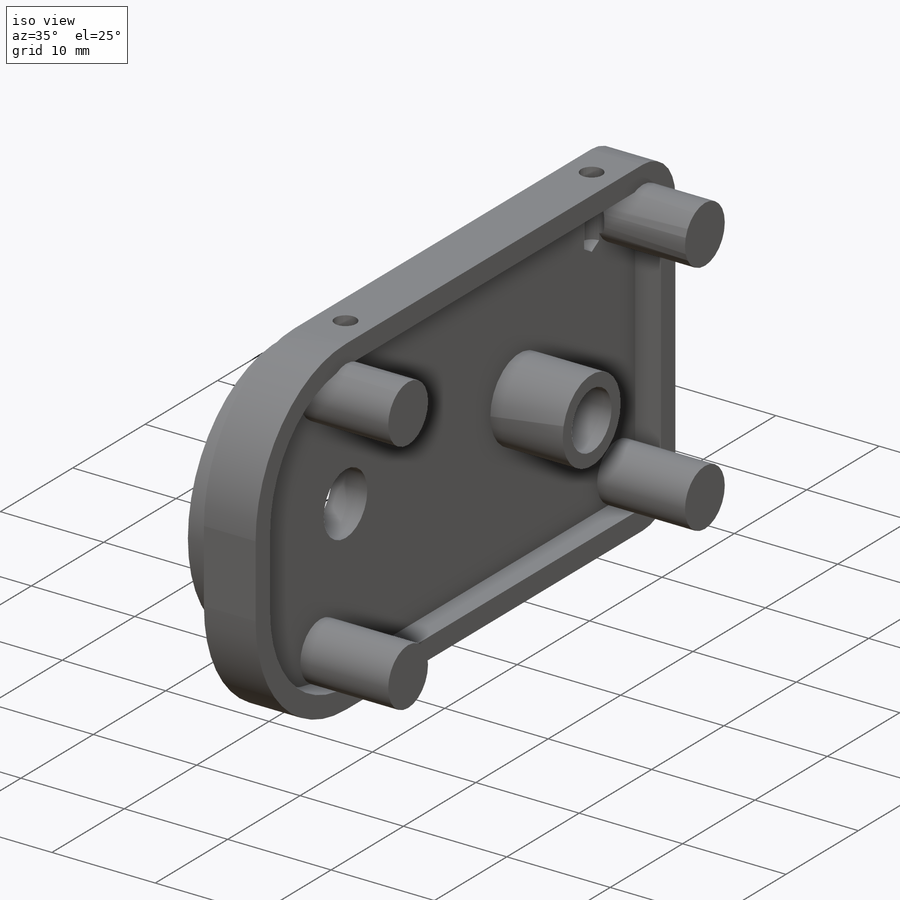
[diagram: iso view]
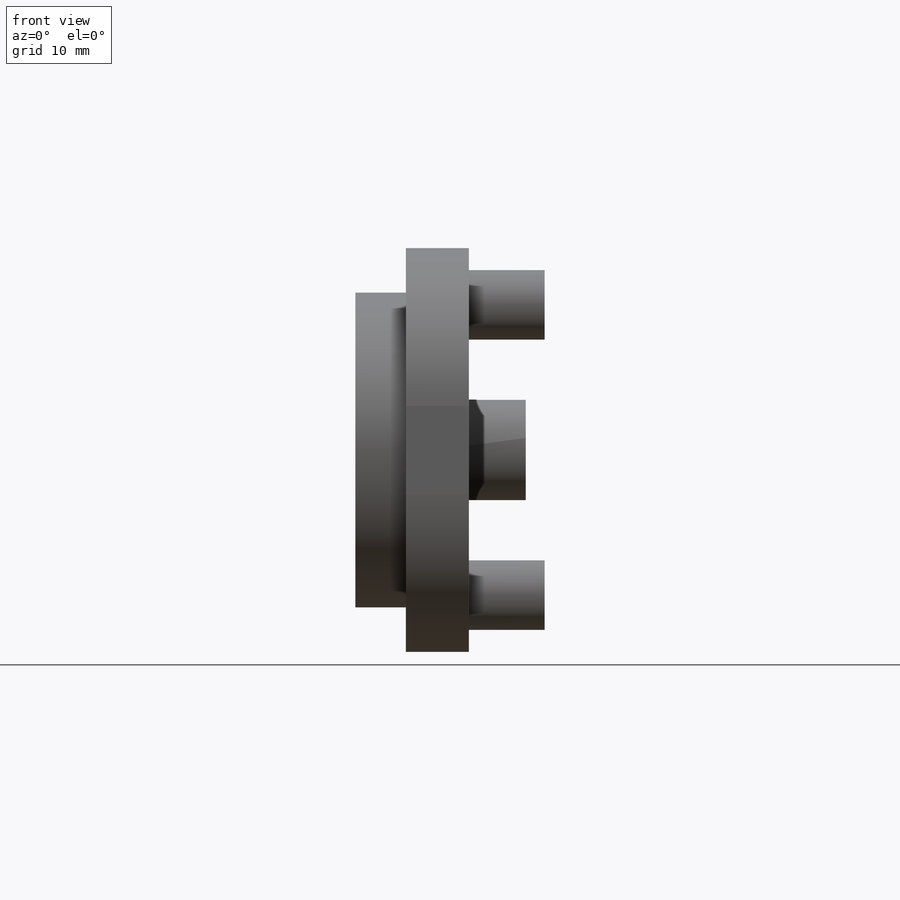
[diagram: front view]
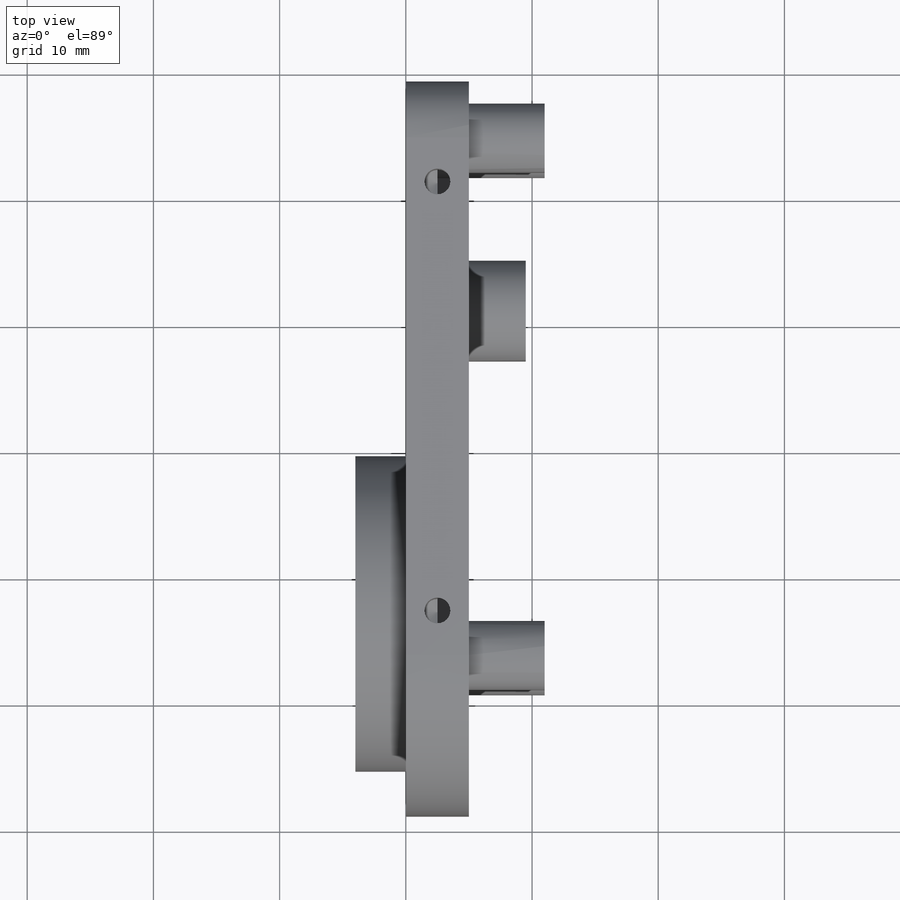
[diagram: top view]
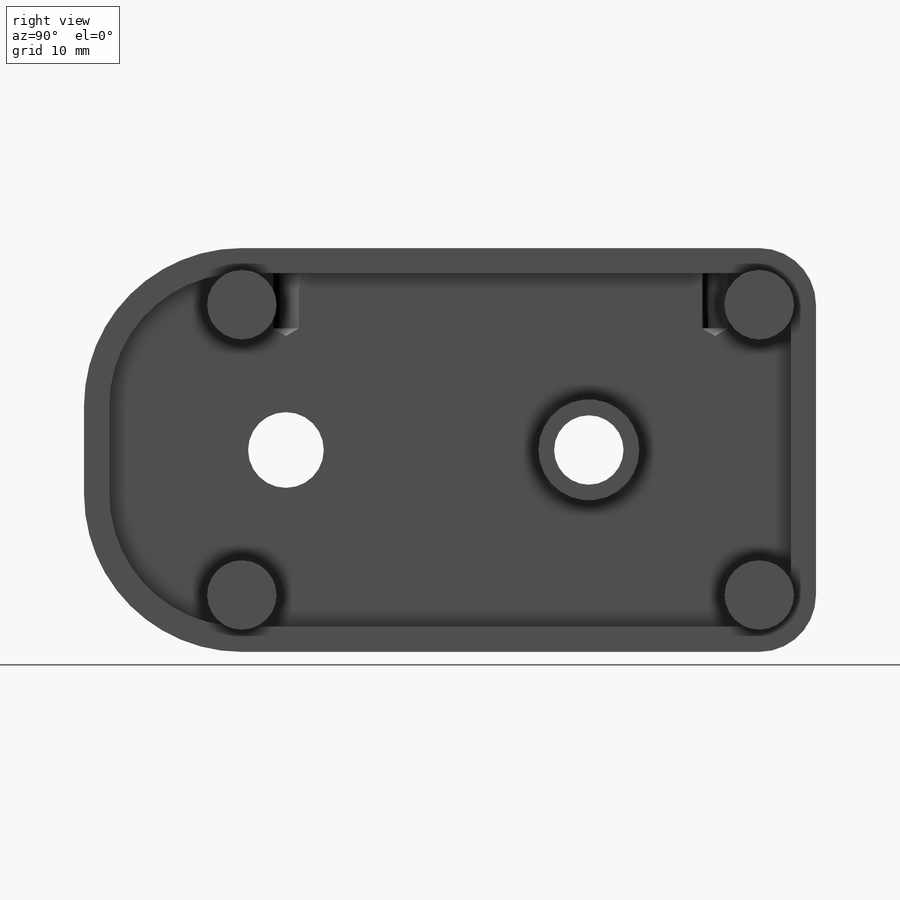
[diagram: right view]
SOLIDWORKS PART (.sldprt)
format: sldprt  version: not decoded by parser v0  size: 419,840 bytes
history: native  units: mm
features: sketch x9, extrude x4, cut_extrude x3, fillet x2, thread x2, material x1, hole x1 (+12 scaffold rows collapsed)
feature tree (34):
  scaffold x12  (default folders/planes/origin — collapsed)
  material  "Delrin 2700 NC010, Low Viscosity Acetal Copolymer (SS)"
  sketch  "Sketch1"  dims[c1.D5=14.5mm c1.D6=14.5mm c1.D3=~5.990504mm c1.D4=5.5mm c1.D1=32.0mm c1.D2=58.0mm c2.D3=8.5mm c2.D4=38.5mm c2.D6=18.0mm c3.D3=18.0mm]
  extrude  "Boss-Extrude1"  Depth=5mm
  sketch  "Sketch2"  dims[D1=8.0mm]
  extrude  "Boss-Extrude2"  Depth=4.5mm
  fillet  "Fillet1"  Radius=4.5mm
  fillet  "Fillet2"  Radius=12.5mm
  sketch  "Sketch4"  dims[D1=5.5mm D2=41.0mm]
  extrude  "Boss-Extrude3"  Depth=6mm
  sketch  "Sketch8"  dims[D1=25.0mm D2=24.0mm]
  extrude  "Boss-Extrude4"  Depth=4mm
  sketch  "Sketch9"  dims[D1=20.0mm]
  cut_extrude  "Cut-Extrude2"  Depth=3mm
  sketch  "Sketch10"  dims[D1=6.0mm]
  cut_extrude  "Cut-Extrude3"  [1 undecoded]
  sketch  "Sketch3"  dims[D1=2.0mm]
  cut_extrude  "Cut-Extrude1"  Depth=2.5mm
  hole  "M2.5x0.45 Tapped Hole1"  Diameter=2.05mm Depth=6.35mm
  sketch  "Sketch7"  dims[D1=34.0mm D2=17.0mm]
  sketch  "Sketch6"  dims[hole-wizard template sketch: 47 standard entries collapsed; hole parameters kept: c15.Tap Drill Depth=6.35mm c15.D3=~14.816244mm c15.Drill Angle=118.0deg]
  thread  "Hole Thread1"  Diameter=5mm  [1 undecoded]
  thread  "Hole Thread2"  Diameter=5mm  [1 undecoded]
decode coverage: 20 of 21 modeling features carry decoded parameters
note: ~ marks probable driven/reference dimensions
note: 3 parameter values undecoded
note: suppression state not decoded; provenance and decode notes live in map.json
